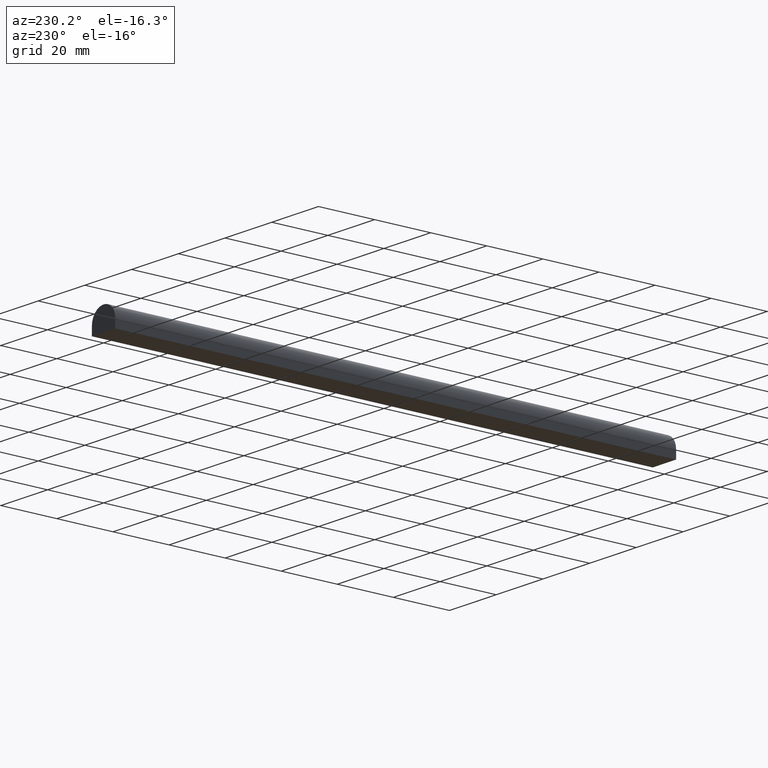
[diagram: clean part render]
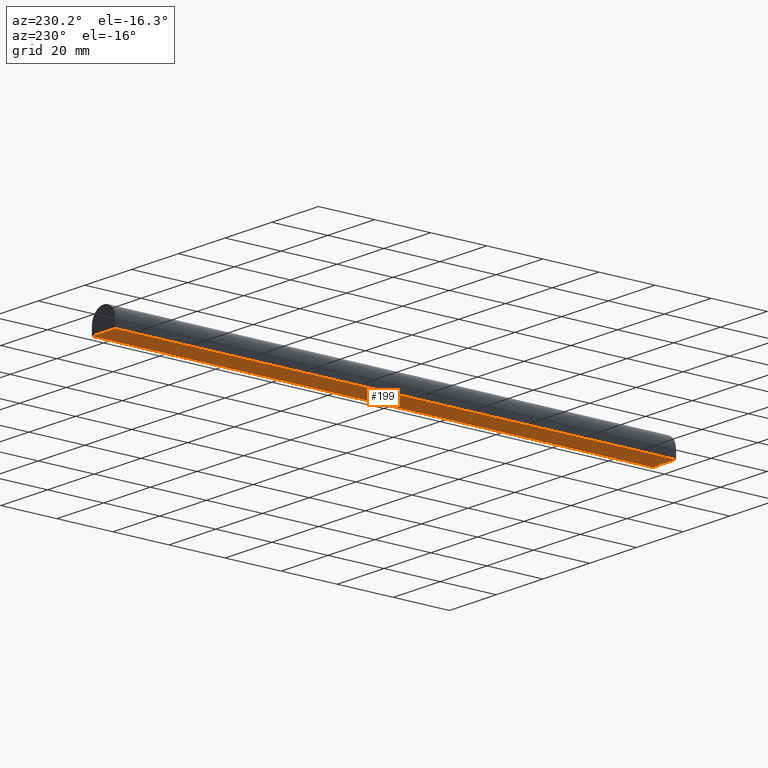
[diagram: same view with one face highlighted and labeled with its STEP entity id]
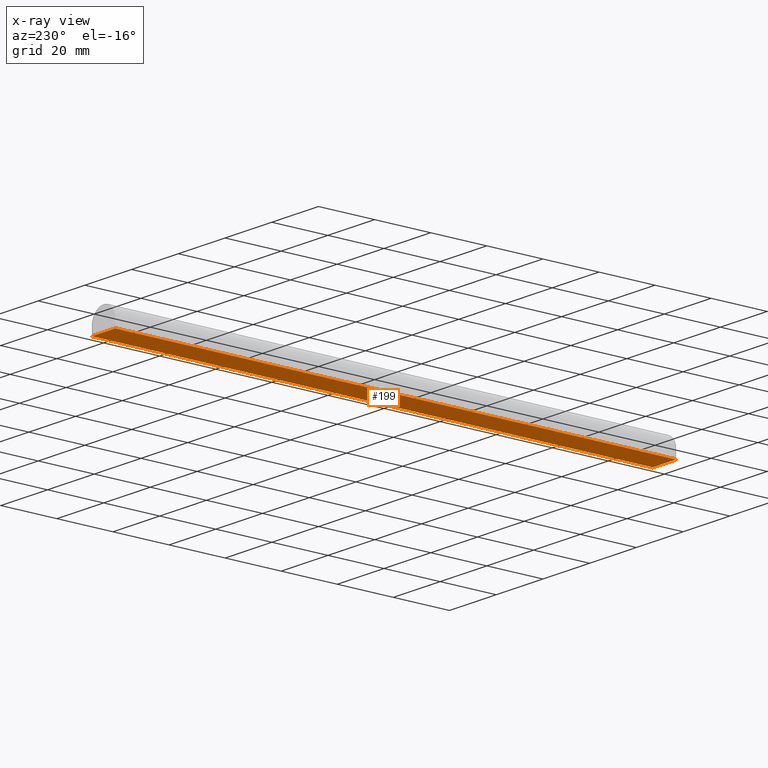
[diagram: x-ray of the same camera — body ghosted, the highlighted face saturated]
A machine part, auxiliary view. The second image highlights one B-rep face of the part: STEP entity #199.
The next image is the same camera in x-ray: the body ghosted, the highlighted face saturated — about 0% of this face is hidden behind the body in this view.
In plain terms, the highlighted planar face has unit normal (0, 0, -1).
Its self-contained STEP definition (entity closure, byte-faithful):
#15 = LINE ( 'NONE', #214, #73 ) ;
#19 = VERTEX_POINT ( 'NONE', #204 ) ;
#27 = VERTEX_POINT ( 'NONE', #132 ) ;
#29 = LINE ( 'NONE', #149, #152 ) ;
#55 = DIRECTION ( 'NONE',  ( 1.000000000000000000, -0.0000000000000000000, -0.0000000000000000000 ) ) ;
#57 = ORIENTED_EDGE ( 'NONE', *, *, #109, .F. ) ;
#59 = VECTOR ( 'NONE', #197, 1000.000000000000000 ) ;
#61 = EDGE_CURVE ( 'NONE', #150, #19, #29, .T. ) ;
#65 = EDGE_CURVE ( 'NONE', #150, #68, #157, .T. ) ;
#68 = VERTEX_POINT ( 'NONE', #226 ) ;
#69 = CARTESIAN_POINT ( 'NONE',  ( -5.000000000000000000, 1000.000000000000000, -4.000000000000000000 ) ) ;
#73 = VECTOR ( 'NONE', #237, 1000.000000000000000 ) ;
#91 = CARTESIAN_POINT ( 'NONE',  ( -5.000000000000000000, 200.0000000000000000, -4.000000000000000000 ) ) ;
#93 = AXIS2_PLACEMENT_3D ( 'NONE', #69, #108, #153 ) ;
#102 = CARTESIAN_POINT ( 'NONE',  ( -5.000000000000000000, 1000.000000000000000, -4.000000000000000000 ) ) ;
#108 = DIRECTION ( 'NONE',  ( 0.0000000000000000000, 0.0000000000000000000, -1.000000000000000000 ) ) ;
#109 = EDGE_CURVE ( 'NONE', #68, #27, #159, .T. ) ;
#112 = EDGE_CURVE ( 'NONE', #19, #27, #15, .T. ) ;
#113 = FACE_OUTER_BOUND ( 'NONE', #133, .T. ) ;
#121 = CARTESIAN_POINT ( 'NONE',  ( 0.0000000000000000000, 0.0000000000000000000, -4.000000000000000000 ) ) ;
#123 = PLANE ( 'NONE',  #93 ) ;
#132 = CARTESIAN_POINT ( 'NONE',  ( 5.000000000000000000, 0.0000000000000000000, -4.000000000000000000 ) ) ;
#133 = EDGE_LOOP ( 'NONE', ( #57, #196, #156, #223 ) ) ;
#146 = VECTOR ( 'NONE', #187, 1000.000000000000000 ) ;
#149 = CARTESIAN_POINT ( 'NONE',  ( 0.0000000000000000000, 200.0000000000000000, -4.000000000000000000 ) ) ;
#150 = VERTEX_POINT ( 'NONE', #91 ) ;
#152 = VECTOR ( 'NONE', #55, 1000.000000000000000 ) ;
#153 = DIRECTION ( 'NONE',  ( -1.000000000000000000, 0.0000000000000000000, 0.0000000000000000000 ) ) ;
#156 = ORIENTED_EDGE ( 'NONE', *, *, #61, .T. ) ;
#157 = LINE ( 'NONE', #102, #146 ) ;
#159 = LINE ( 'NONE', #121, #59 ) ;
#187 = DIRECTION ( 'NONE',  ( 0.0000000000000000000, -1.000000000000000000, 0.0000000000000000000 ) ) ;
#196 = ORIENTED_EDGE ( 'NONE', *, *, #65, .F. ) ;
#197 = DIRECTION ( 'NONE',  ( 1.000000000000000000, -0.0000000000000000000, -0.0000000000000000000 ) ) ;
#199 = ADVANCED_FACE ( 'NONE', ( #113 ), #123, .T. ) ;
#204 = CARTESIAN_POINT ( 'NONE',  ( 5.000000000000000000, 200.0000000000000000, -4.000000000000000000 ) ) ;
#214 = CARTESIAN_POINT ( 'NONE',  ( 5.000000000000000000, 1000.000000000000000, -4.000000000000000000 ) ) ;
#223 = ORIENTED_EDGE ( 'NONE', *, *, #112, .T. ) ;
#226 = CARTESIAN_POINT ( 'NONE',  ( -5.000000000000000000, 0.0000000000000000000, -4.000000000000000000 ) ) ;
#237 = DIRECTION ( 'NONE',  ( 0.0000000000000000000, -1.000000000000000000, 0.0000000000000000000 ) ) ;